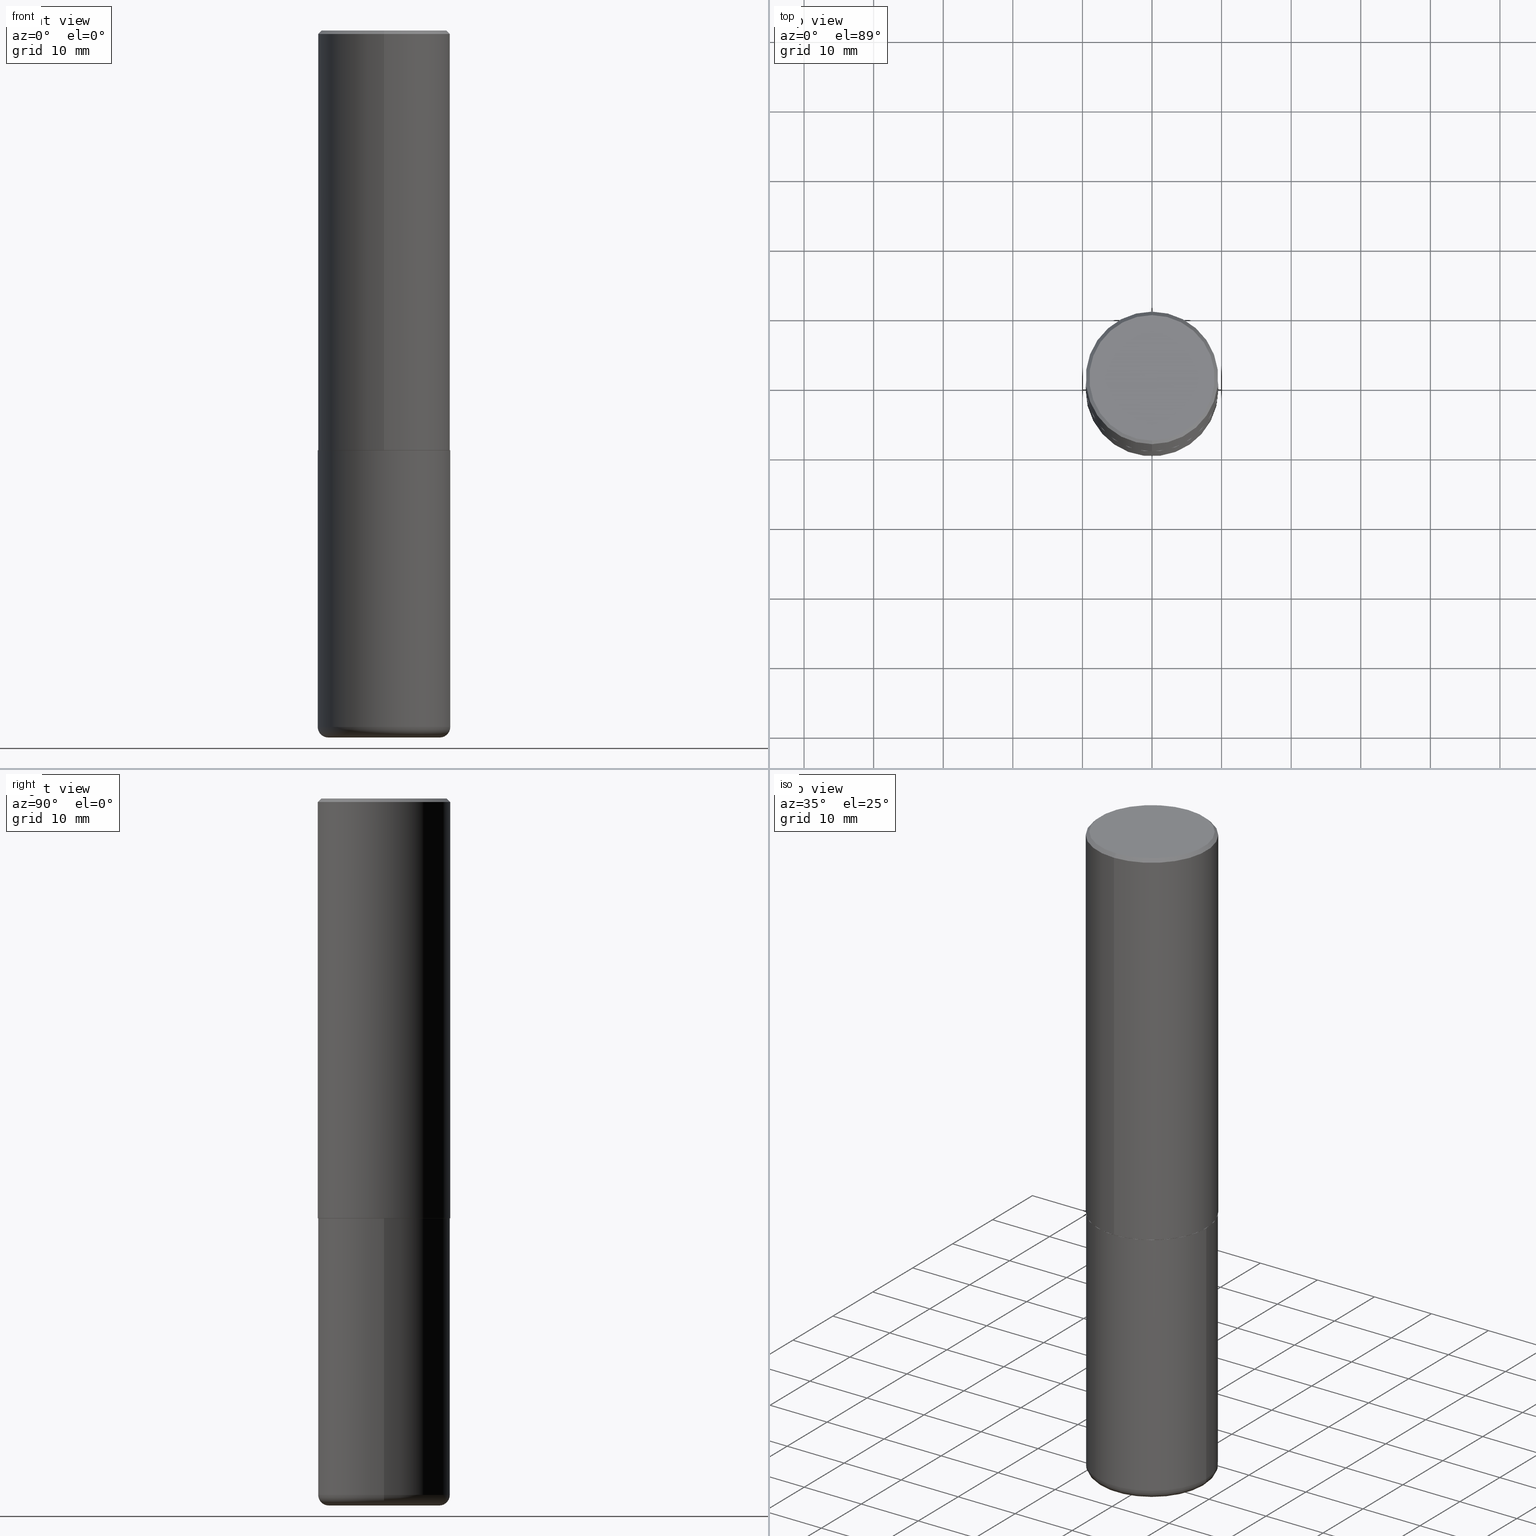
[diagram: canonical four-view strip — front | top / right | iso, engineering-drawing reading convention]
A machine part, canonical four-view strip (front | top / right | iso — engineering-drawing reading convention). The complete STEP part file that produces these views, byte-faithful:
ISO-10303-21;
HEADER;
FILE_DESCRIPTION (( 'STEP AP203' ),
    '1' );
FILE_NAME ('37224.STEP',
    '2024-03-01T22:15:55',
    ( '' ),
    ( '' ),
    'SwSTEP 2.0',
    'SolidWorks 2023',
    '' );
FILE_SCHEMA (( 'CONFIG_CONTROL_DESIGN' ));
ENDSEC;

DATA;
#1 = VECTOR ( 'NONE', #229, 39.37007874015748854 ) ;
#2 = APPROVAL ( #323, 'UNSPECIFIED' ) ;
#3 = ORIENTED_EDGE ( 'NONE', *, *, #187, .F. ) ;
#4 = CARTESIAN_POINT ( 'NONE',  ( -2.618611004132351200E-15, -0.3750000000000001665, 1.309785868171475725E-15 ) ) ;
#5 = LINE ( 'NONE', #204, #127 ) ;
#6 = DATE_AND_TIME ( #374, #208 ) ;
#7 = CC_DESIGN_APPROVAL ( #2, ( #25 ) ) ;
#8 = CARTESIAN_POINT ( 'NONE',  ( 4.889148610458350090E-31, -6.985524630247905373E-17, -0.02000000000000010797 ) ) ;
#9 = FACE_OUTER_BOUND ( 'NONE', #129, .T. ) ;
#10 = CARTESIAN_POINT ( 'NONE',  ( 0.000000000000000000, 0.000000000000000000, 0.000000000000000000 ) ) ;
#11 = CARTESIAN_POINT ( 'NONE',  ( 0.3750000000000000555, -1.091087918388482013E-14, -2.375000000000000000 ) ) ;
#12 = DIRECTION ( 'NONE',  ( 2.438088387897960049E-29, -3.491481338843145188E-15, -1.000000000000000000 ) ) ;
#13 = VECTOR ( 'NONE', #239, 39.37007874015748143 ) ;
#14 = CARTESIAN_POINT ( 'NONE',  ( 5.807988414689699417E-29, -8.292268179752470118E-15, -2.375000000000000000 ) ) ;
#15 = EDGE_CURVE ( 'NONE', #268, #417, #386, .T. ) ;
#16 = TOROIDAL_SURFACE ( 'NONE', #249, 0.3150000000000000577, 0.06000000000000021289 ) ;
#17 = COORDINATED_UNIVERSAL_TIME_OFFSET ( 5, 0, .BEHIND. ) ;
#18 = FACE_OUTER_BOUND ( 'NONE', #387, .T. ) ;
#19 = ORIENTED_EDGE ( 'NONE', *, *, #141, .T. ) ;
#20 = FACE_OUTER_BOUND ( 'NONE', #258, .T. ) ;
#21 = CARTESIAN_POINT ( 'NONE',  ( 9.635147096369438236E-29, -1.375643647504199401E-14, -3.939999999999999947 ) ) ;
#22 = EDGE_CURVE ( 'NONE', #193, #98, #214, .T. ) ;
#23 = AXIS2_PLACEMENT_3D ( 'NONE', #125, #155, #284 ) ;
#24 = DIRECTION ( 'NONE',  ( 1.000000000000000000, -6.982962677686266711E-15, 0.000000000000000000 ) ) ;
#25 = SECURITY_CLASSIFICATION ( '', '', #308 ) ;
#26 = VERTEX_POINT ( 'NONE', #252 ) ;
#27 = UNCERTAINTY_MEASURE_WITH_UNIT (LENGTH_MEASURE( 1.000000000000000082E-05 ), #151, 'distance_accuracy_value', 'NONE');
#28 = EDGE_CURVE ( 'NONE', #183, #114, #292, .T. ) ;
#29 = ORIENTED_EDGE ( 'NONE', *, *, #263, .T. ) ;
#30 = CIRCLE ( 'NONE', #319, 0.3750000000000000555 ) ;
#31 = AXIS2_PLACEMENT_3D ( 'NONE', #403, #271, #24 ) ;
#32 = DATE_AND_TIME ( #186, #400 ) ;
#33 = ADVANCED_BREP_SHAPE_REPRESENTATION ( '37224', ( #228, #371, #59 ), #367 ) ;
#34 = ORIENTED_EDGE ( 'NONE', *, *, #207, .T. ) ;
#35 = EDGE_CURVE ( 'NONE', #177, #54, #168, .T. ) ;
#36 = VERTEX_POINT ( 'NONE', #321 ) ;
#37 = DATE_AND_TIME ( #277, #134 ) ;
#38 = SHAPE_DEFINITION_REPRESENTATION ( #70, #33 ) ;
#39 = EDGE_CURVE ( 'NONE', #98, #193, #256, .T. ) ;
#40 = ORIENTED_EDGE ( 'NONE', *, *, #383, .T. ) ;
#41 = CARTESIAN_POINT ( 'NONE',  ( 4.889148610458350090E-31, -6.985524630247905373E-17, -0.02000000000000010797 ) ) ;
#42 = CARTESIAN_POINT ( 'NONE',  ( -0.3750000000000000555, 2.664535259100376091E-15, -1.844600658845589598E-29 ) ) ;
#43 = CARTESIAN_POINT ( 'NONE',  ( 0.000000000000000000, 0.000000000000000000, 0.000000000000000000 ) ) ;
#44 = CARTESIAN_POINT ( 'NONE',  ( 2.618611004132350411E-15, 0.3749999999999999445, -0.02000000000000141595 ) ) ;
#45 = DIRECTION ( 'NONE',  ( -2.444574305229161733E-29, 3.492762315123933951E-15, 1.000000000000000000 ) ) ;
#46 =( LENGTH_UNIT ( ) NAMED_UNIT ( * ) SI_UNIT ( $, .METRE. ) );
#47 = AXIS2_PLACEMENT_3D ( 'NONE', #163, #79, #170 ) ;
#48 = AXIS2_PLACEMENT_3D ( 'NONE', #235, #209, #407 ) ;
#49 = DIRECTION ( 'NONE',  ( 7.105427357601001859E-15, 1.000000000000000000, -3.491481338843145583E-15 ) ) ;
#50 = LINE ( 'NONE', #4, #13 ) ;
#51 = APPROVAL ( #142, 'UNSPECIFIED' ) ;
#52 = APPROVAL_ROLE ( '' ) ;
#53 = DIRECTION ( 'NONE',  ( -2.445468806185136597E-29, 3.491481338843145583E-15, 1.000000000000000000 ) ) ;
#54 = VERTEX_POINT ( 'NONE', #265 ) ;
#55 = CYLINDRICAL_SURFACE ( 'NONE', #119, 0.3750000000000000555 ) ;
#56 = DIRECTION ( 'NONE',  ( 1.000000000000000000, -6.982962677686266711E-15, 0.000000000000000000 ) ) ;
#57 = ORIENTED_EDGE ( 'NONE', *, *, #289, .F. ) ;
#58 = CARTESIAN_POINT ( 'NONE',  ( 5.805863974919259746E-29, -8.295310498419343824E-15, -2.375000000000000000 ) ) ;
#59 = AXIS2_PLACEMENT_3D ( 'NONE', #320, #273, #189 ) ;
#60 = ORIENTED_EDGE ( 'NONE', *, *, #141, .F. ) ;
#61 = CARTESIAN_POINT ( 'NONE',  ( -2.611628041454605626E-15, -0.3740000000000082703, -2.374999999999998668 ) ) ;
#62 = COORDINATED_UNIVERSAL_TIME_OFFSET ( 5, 0, .BEHIND. ) ;
#63 = ORIENTED_EDGE ( 'NONE', *, *, #22, .F. ) ;
#64 = DIRECTION ( 'NONE',  ( -2.445468806185136597E-29, 3.491481338843145583E-15, 1.000000000000000000 ) ) ;
#65 = CIRCLE ( 'NONE', #109, 0.06000000000000017819 ) ;
#66 = CARTESIAN_POINT ( 'NONE',  ( 9.781875224740547508E-29, -1.396592535537258391E-14, -4.000000000000000888 ) ) ;
#67 = ORIENTED_EDGE ( 'NONE', *, *, #379, .T. ) ;
#68 = ORIENTED_EDGE ( 'NONE', *, *, #210, .F. ) ;
#69 = DIRECTION ( 'NONE',  ( 1.000000000000000000, -6.982962677686263555E-15, 4.883557194083111219E-29 ) ) ;
#70 = PRODUCT_DEFINITION_SHAPE ( 'NONE', 'NONE',  #230 ) ;
#71 = AXIS2_PLACEMENT_3D ( 'NONE', #21, #53, #169 ) ;
#72 = LINE ( 'NONE', #42, #306 ) ;
#73 = DIRECTION ( 'NONE',  ( -2.444574305229161733E-29, 3.492762315123933951E-15, 1.000000000000000000 ) ) ;
#74 = EDGE_CURVE ( 'NONE', #98, #221, #300, .T. ) ;
#75 = CARTESIAN_POINT ( 'NONE',  ( -2.572686749164323547E-15, -0.3750000000000001110, -0.01999999999999879652 ) ) ;
#76 = FACE_OUTER_BOUND ( 'NONE', #160, .T. ) ;
#77 = CONICAL_SURFACE ( 'NONE', #113, 0.3739999999999999991, 0.7853981633974141952 ) ;
#78 = CARTESIAN_POINT ( 'NONE',  ( 4.937077108964125641E-29, -2.090395200594849049E-14, -4.000000000000000000 ) ) ;
#79 = DIRECTION ( 'NONE',  ( -2.445468806185136597E-29, 3.491481338843145583E-15, 1.000000000000000000 ) ) ;
#80 = AXIS2_PLACEMENT_3D ( 'NONE', #165, #99, #167 ) ;
#81 = ADVANCED_FACE ( 'NONE', ( #76 ), #260, .T. ) ;
#82 = PRODUCT_DEFINITION_FORMATION_WITH_SPECIFIED_SOURCE ( 'ANY', '', #293, .NOT_KNOWN. ) ;
#83 = DIRECTION ( 'NONE',  ( -1.000000000000000000, 6.982962677686265922E-15, -4.876176775795935793E-29 ) ) ;
#84 = FACE_OUTER_BOUND ( 'NONE', #287, .T. ) ;
#85 = PLANE ( 'NONE',  #154 ) ;
#86 = ORIENTED_EDGE ( 'NONE', *, *, #304, .T. ) ;
#87 = DIRECTION ( 'NONE',  ( -1.000000000000000000, 6.982962677686265922E-15, -4.876176775795935793E-29 ) ) ;
#88 = APPLICATION_PROTOCOL_DEFINITION ( 'international standard', 'config_control_design', 1994, #232 ) ;
#89 = PLANE ( 'NONE',  #227 ) ;
#90 = AXIS2_PLACEMENT_3D ( 'NONE', #8, #104, #305 ) ;
#91 = AXIS2_PLACEMENT_3D ( 'NONE', #111, #73, #242 ) ;
#92 = LINE ( 'NONE', #61, #326 ) ;
#93 = EDGE_LOOP ( 'NONE', ( #118, #143, #389, #370 ) ) ;
#94 = CARTESIAN_POINT ( 'NONE',  ( 5.803419400614030161E-29, -8.291817736104219412E-15, -2.373999999999999666 ) ) ;
#95 = DESIGN_CONTEXT ( 'detailed design', #247, 'design' ) ;
#96 = DIRECTION ( 'NONE',  ( -2.444574305229161733E-29, 3.492762315123933951E-15, 1.000000000000000000 ) ) ;
#97 = ORIENTED_EDGE ( 'NONE', *, *, #201, .T. ) ;
#98 = VERTEX_POINT ( 'NONE', #236 ) ;
#99 = DIRECTION ( 'NONE',  ( -2.445468806185136597E-29, 3.491481338843145583E-15, 1.000000000000000000 ) ) ;
#100 = CARTESIAN_POINT ( 'NONE',  ( 5.807988414689699417E-29, -8.292268179752470118E-15, -2.375000000000000000 ) ) ;
#101 = PLANE ( 'NONE',  #272 ) ;
#102 = EDGE_CURVE ( 'NONE', #220, #346, #181, .T. ) ;
#103 = ORGANIZATION ( 'UNSPECIFIED', 'UNSPECIFIED', '' ) ;
#104 = DIRECTION ( 'NONE',  ( -2.444574305229161733E-29, 3.492762315123933951E-15, 1.000000000000000000 ) ) ;
#105 = APPROVAL_ROLE ( '' ) ;
#106 = FACE_OUTER_BOUND ( 'NONE', #257, .T. ) ;
#107 = CARTESIAN_POINT ( 'NONE',  ( -2.618611004132293613E-15, -0.3750000000000085487, -2.373999999999998334 ) ) ;
#108 = PRODUCT_RELATED_PRODUCT_CATEGORY ( 'detail', '', ( #293 ) ) ;
#109 = AXIS2_PLACEMENT_3D ( 'NONE', #211, #333, #402 ) ;
#110 = DIRECTION ( 'NONE',  ( 6.982962677686265922E-15, 1.000000000000000000, -3.494488891895536035E-15 ) ) ;
#111 = CARTESIAN_POINT ( 'NONE',  ( 5.805863974919259746E-29, -8.295310498419343824E-15, -2.375000000000000000 ) ) ;
#112 = ORIENTED_EDGE ( 'NONE', *, *, #341, .T. ) ;
#113 = AXIS2_PLACEMENT_3D ( 'NONE', #296, #394, #171 ) ;
#114 = VERTEX_POINT ( 'NONE', #398 ) ;
#115 =( NAMED_UNIT ( * ) SI_UNIT ( $, .STERADIAN. ) SOLID_ANGLE_UNIT ( ) );
#116 = ADVANCED_FACE ( 'NONE', ( #206 ), #267, .T. ) ;
#117 = CIRCLE ( 'NONE', #392, 0.3750000000000002776 ) ;
#118 = ORIENTED_EDGE ( 'NONE', *, *, #22, .T. ) ;
#119 = AXIS2_PLACEMENT_3D ( 'NONE', #43, #178, #330 ) ;
#120 = MECHANICAL_CONTEXT ( 'NONE', #232, 'mechanical' ) ;
#121 = DIRECTION ( 'NONE',  ( 1.000000000000000000, -6.982962677686267499E-15, 0.000000000000000000 ) ) ;
#122 = PERSON_AND_ORGANIZATION_ROLE ( 'design_owner' ) ;
#123 = CC_DESIGN_DATE_AND_TIME_ASSIGNMENT ( #285, #347, ( #25 ) ) ;
#124 = EDGE_LOOP ( 'NONE', ( #3, #40, #357, #348 ) ) ;
#125 = CARTESIAN_POINT ( 'NONE',  ( 5.805863974919259746E-29, -8.295310498419343824E-15, -2.375000000000000000 ) ) ;
#126 = LINE ( 'NONE', #388, #1 ) ;
#127 = VECTOR ( 'NONE', #336, 39.37007874015748143 ) ;
#128 = AXIS2_PLACEMENT_3D ( 'NONE', #100, #176, #56 ) ;
#129 = EDGE_LOOP ( 'NONE', ( #344, #159, #250, #60 ) ) ;
#130 = CARTESIAN_POINT ( 'NONE',  ( 5.803419400614030161E-29, -8.291817736104219412E-15, -2.373999999999999666 ) ) ;
#131 = CARTESIAN_POINT ( 'NONE',  ( 0.000000000000000000, 0.000000000000000000, 0.000000000000000000 ) ) ;
#132 = AXIS2_PLACEMENT_3D ( 'NONE', #198, #329, #200 ) ;
#133 = APPROVAL_DATE_TIME ( #37, #180 ) ;
#134 = LOCAL_TIME ( 17, 15, 55.00000000000000000, #234 ) ;
#135 = PERSON_AND_ORGANIZATION ( #213, #103 ) ;
#136 = CARTESIAN_POINT ( 'NONE',  ( -2.611628041454605626E-15, -0.3740000000000082703, -2.374999999999998668 ) ) ;
#137 = CC_DESIGN_PERSON_AND_ORGANIZATION_ASSIGNMENT ( #337, #172, ( #230 ) ) ;
#138 = DIRECTION ( 'NONE',  ( -2.445468806185136597E-29, 3.491481338843145583E-15, 1.000000000000000000 ) ) ;
#139 = FACE_OUTER_BOUND ( 'NONE', #93, .T. ) ;
#140 = VECTOR ( 'NONE', #233, 39.37007874015748143 ) ;
#141 = EDGE_CURVE ( 'NONE', #183, #220, #50, .T. ) ;
#142 = APPROVAL_STATUS ( 'not_yet_approved' ) ;
#143 = ORIENTED_EDGE ( 'NONE', *, *, #74, .T. ) ;
#144 = ADVANCED_FACE ( 'NONE', ( #139 ), #237, .T. ) ;
#145 = CARTESIAN_POINT ( 'NONE',  ( 2.660982545421634357E-15, 0.3739999999999917835, -2.375000000000001776 ) ) ;
#146 = CLOSED_SHELL ( 'NONE', ( #270, #217, #240, #116, #278, #175, #405, #362 ) ) ;
#147 = AXIS2_PLACEMENT_3D ( 'NONE', #222, #364, #356 ) ;
#148 = CARTESIAN_POINT ( 'NONE',  ( -2.504081769186607821E-15, -0.3549999999999997602, 1.509301655325001413E-15 ) ) ;
#149 = EDGE_LOOP ( 'NONE', ( #57, #317, #29, #34 ) ) ;
#150 = DIRECTION ( 'NONE',  ( -6.982962677686266711E-15, -1.000000000000000000, 3.652203200085913145E-15 ) ) ;
#151 =( CONVERSION_BASED_UNIT ( 'INCH', #414 ) LENGTH_UNIT ( ) NAMED_UNIT ( #373 ) );
#152 = ORIENTED_EDGE ( 'NONE', *, *, #102, .T. ) ;
#153 = DIRECTION ( 'NONE',  ( -4.937700262164378437E-15, -0.7071067811865208164, 0.7071067811865739960 ) ) ;
#154 = AXIS2_PLACEMENT_3D ( 'NONE', #339, #311, #361 ) ;
#155 = DIRECTION ( 'NONE',  ( -2.444574305229161733E-29, 3.492762315123933951E-15, 1.000000000000000000 ) ) ;
#156 = CC_DESIGN_PERSON_AND_ORGANIZATION_ASSIGNMENT ( #382, #353, ( #25 ) ) ;
#157 = ORIENTED_EDGE ( 'NONE', *, *, #35, .T. ) ;
#158 = APPROVAL_ROLE ( '' ) ;
#159 = ORIENTED_EDGE ( 'NONE', *, *, #297, .T. ) ;
#160 = EDGE_LOOP ( 'NONE', ( #67, #223, #324, #68 ) ) ;
#161 = LOCAL_TIME ( 17, 15, 55.00000000000000000, #17 ) ;
#162 = CC_DESIGN_DATE_AND_TIME_ASSIGNMENT ( #6, #299, ( #230 ) ) ;
#163 = CARTESIAN_POINT ( 'NONE',  ( 9.635147096369438236E-29, -1.375643647504199401E-14, -3.939999999999999947 ) ) ;
#164 = DIRECTION ( 'NONE',  ( -2.444574305229161733E-29, 3.492762315123933951E-15, 1.000000000000000000 ) ) ;
#165 = CARTESIAN_POINT ( 'NONE',  ( 0.000000000000000000, 0.000000000000000000, 0.000000000000000000 ) ) ;
#166 = PERSON_AND_ORGANIZATION ( #213, #103 ) ;
#167 = DIRECTION ( 'NONE',  ( 1.000000000000000000, -6.982962677686265922E-15, 4.876176775795935793E-29 ) ) ;
#168 = CIRCLE ( 'NONE', #248, 0.3750000000000000555 ) ;
#169 = DIRECTION ( 'NONE',  ( 1.000000000000000000, -6.982962677686266711E-15, 0.000000000000000000 ) ) ;
#170 = DIRECTION ( 'NONE',  ( 1.000000000000000000, -6.982962677686263555E-15, 4.883557194083111219E-29 ) ) ;
#171 = DIRECTION ( 'NONE',  ( -6.982962677686266711E-15, -1.000000000000000000, 3.652203200085913145E-15 ) ) ;
#172 = PERSON_AND_ORGANIZATION_ROLE ( 'creator' ) ;
#173 = FACE_OUTER_BOUND ( 'NONE', #179, .T. ) ;
#174 = CLOSED_SHELL ( 'NONE', ( #81, #144, #275, #416, #345, #328 ) ) ;
#175 = ADVANCED_FACE ( 'NONE', ( #331 ), #77, .T. ) ;
#176 = DIRECTION ( 'NONE',  ( -2.445468806185136597E-29, 3.491481338843145583E-15, 1.000000000000000000 ) ) ;
#177 = VERTEX_POINT ( 'NONE', #11 ) ;
#178 = DIRECTION ( 'NONE',  ( -2.445468806185136597E-29, 3.491481338843145583E-15, 1.000000000000000000 ) ) ;
#179 = EDGE_LOOP ( 'NONE', ( #157, #195 ) ) ;
#180 = APPROVAL ( #396, 'UNSPECIFIED' ) ;
#181 = CIRCLE ( 'NONE', #90, 0.3750000000000000555 ) ;
#182 = CIRCLE ( 'NONE', #128, 0.3750000000000000555 ) ;
#183 = VERTEX_POINT ( 'NONE', #107 ) ;
#184 = FACE_OUTER_BOUND ( 'NONE', #312, .T. ) ;
#185 = DIRECTION ( 'NONE',  ( -2.444574305229161733E-29, 3.492762315123933951E-15, 1.000000000000000000 ) ) ;
#186 = CALENDAR_DATE ( 2024, 1, 3 ) ;
#187 = EDGE_CURVE ( 'NONE', #221, #54, #72, .T. ) ;
#188 = ORIENTED_EDGE ( 'NONE', *, *, #358, .T. ) ;
#189 = DIRECTION ( 'NONE',  ( 1.000000000000000000, 0.000000000000000000, 0.000000000000000000 ) ) ;
#190 = APPROVAL_PERSON_ORGANIZATION ( #192, #2, #158 ) ;
#191 = DIRECTION ( 'NONE',  ( 1.000000000000000000, -6.982962677686266711E-15, 0.000000000000000000 ) ) ;
#192 = PERSON_AND_ORGANIZATION ( #213, #103 ) ;
#193 = VERTEX_POINT ( 'NONE', #231 ) ;
#194 = ORIENTED_EDGE ( 'NONE', *, *, #263, .F. ) ;
#195 = ORIENTED_EDGE ( 'NONE', *, *, #401, .T. ) ;
#196 = AXIS2_PLACEMENT_3D ( 'NONE', #66, #138, #365 ) ;
#197 = CIRCLE ( 'NONE', #71, 0.3750000000000000555 ) ;
#198 = CARTESIAN_POINT ( 'NONE',  ( 4.889148610458350090E-31, -6.985524630247905373E-17, -0.02000000000000010797 ) ) ;
#199 = FACE_OUTER_BOUND ( 'NONE', #124, .T. ) ;
#200 = DIRECTION ( 'NONE',  ( 6.982962677686265922E-15, 1.000000000000000000, -3.494488891895536035E-15 ) ) ;
#201 = EDGE_CURVE ( 'NONE', #114, #183, #117, .T. ) ;
#202 = DIRECTION ( 'NONE',  ( -2.444574305229161733E-29, 3.492762315123933951E-15, 1.000000000000000000 ) ) ;
#203 = AXIS2_PLACEMENT_3D ( 'NONE', #58, #185, #150 ) ;
#204 = CARTESIAN_POINT ( 'NONE',  ( 0.3750000000000000555, -2.618611004132350016E-15, 1.828566290923476203E-29 ) ) ;
#205 = APPROVAL_DATE_TIME ( #310, #51 ) ;
#206 = FACE_OUTER_BOUND ( 'NONE', #149, .T. ) ;
#207 = EDGE_CURVE ( 'NONE', #346, #220, #30, .T. ) ;
#208 = LOCAL_TIME ( 17, 15, 55.00000000000000000, #376 ) ;
#209 = DIRECTION ( 'NONE',  ( -2.444574305229161733E-29, 3.492762315123933951E-15, 1.000000000000000000 ) ) ;
#210 = EDGE_CURVE ( 'NONE', #26, #177, #5, .T. ) ;
#211 = CARTESIAN_POINT ( 'NONE',  ( 0.3150000000000000577, -1.595606971851316740E-14, -3.939999999999999947 ) ) ;
#212 = ORIENTED_EDGE ( 'NONE', *, *, #332, .T. ) ;
#213 = PERSON ( 'UNSPECIFIED', 'UNSPECIFIED', 'UNSPECIFIED', ('UNSPECIFIED'), ('UNSPECIFIED'), ('UNSPECIFIED') ) ;
#214 = CIRCLE ( 'NONE', #244, 0.3150000000000000577 ) ;
#215 = LINE ( 'NONE', #316, #351 ) ;
#216 = COORDINATED_UNIVERSAL_TIME_OFFSET ( 5, 0, .BEHIND. ) ;
#217 = ADVANCED_FACE ( 'NONE', ( #9 ), #399, .T. ) ;
#218 = EDGE_LOOP ( 'NONE', ( #63, #307 ) ) ;
#219 = DIRECTION ( 'NONE',  ( -6.982962677686266711E-15, -1.000000000000000000, 3.642463991552348591E-15 ) ) ;
#220 = VERTEX_POINT ( 'NONE', #75 ) ;
#221 = VERTEX_POINT ( 'NONE', #264 ) ;
#222 = CARTESIAN_POINT ( 'NONE',  ( -6.584975069595768119E-45, 9.408489944411256093E-31, 2.693710334560058270E-16 ) ) ;
#223 = ORIENTED_EDGE ( 'NONE', *, *, #187, .T. ) ;
#224 = AXIS2_PLACEMENT_3D ( 'NONE', #94, #96, #219 ) ;
#225 = DIRECTION ( 'NONE',  ( -6.982962677686266711E-15, -1.000000000000000000, 3.492762315123933556E-15 ) ) ;
#226 = CONICAL_SURFACE ( 'NONE', #132, 0.3750000000000000555, 0.7853981633974456145 ) ;
#227 = AXIS2_PLACEMENT_3D ( 'NONE', #14, #375, #83 ) ;
#228 = MANIFOLD_SOLID_BREP ( 'Body-Move/Copy2[1]', #174 ) ;
#229 = DIRECTION ( 'NONE',  ( 5.024295867787889629E-15, 0.7071067811865257013, 0.7071067811865691111 ) ) ;
#230 = PRODUCT_DEFINITION ( 'UNKNOWN', '', #82, #95 ) ;
#231 = CARTESIAN_POINT ( 'NONE',  ( 0.3150000000000000577, -1.616555859884375729E-14, -4.000000000000000888 ) ) ;
#232 = APPLICATION_CONTEXT ( 'configuration controlled 3d designs of mechanical parts and assemblies' ) ;
#233 = DIRECTION ( 'NONE',  ( -2.444574305229161733E-29, 3.492762315123933951E-15, 1.000000000000000000 ) ) ;
#234 = COORDINATED_UNIVERSAL_TIME_OFFSET ( 5, 0, .BEHIND. ) ;
#235 = CARTESIAN_POINT ( 'NONE',  ( 5.805863974919259746E-29, -8.295310498419343824E-15, -2.375000000000000000 ) ) ;
#236 = CARTESIAN_POINT ( 'NONE',  ( -0.3150000000000000577, -1.140980847683494193E-14, -4.000000000000000888 ) ) ;
#237 = TOROIDAL_SURFACE ( 'NONE', #47, 0.3150000000000000577, 0.06000000000000021289 ) ;
#238 = APPROVAL_PERSON_ORGANIZATION ( #135, #180, #105 ) ;
#239 = DIRECTION ( 'NONE',  ( -2.444574305229161733E-29, 3.492762315123933951E-15, 1.000000000000000000 ) ) ;
#240 = ADVANCED_FACE ( 'NONE', ( #334 ), #226, .T. ) ;
#241 = CALENDAR_DATE ( 2024, 1, 3 ) ;
#242 = DIRECTION ( 'NONE',  ( -6.982962677686265922E-15, -1.000000000000000000, 3.492762315123933951E-15 ) ) ;
#243 = EDGE_LOOP ( 'NONE', ( #246, #212, #112, #377 ) ) ;
#244 = AXIS2_PLACEMENT_3D ( 'NONE', #412, #352, #121 ) ;
#245 = CC_DESIGN_SECURITY_CLASSIFICATION ( #25, ( #82 ) ) ;
#246 = ORIENTED_EDGE ( 'NONE', *, *, #355, .F. ) ;
#247 = APPLICATION_CONTEXT ( 'configuration controlled 3d designs of mechanical parts and assemblies' ) ;
#248 = AXIS2_PLACEMENT_3D ( 'NONE', #350, #64, #191 ) ;
#249 = AXIS2_PLACEMENT_3D ( 'NONE', #409, #288, #69 ) ;
#250 = ORIENTED_EDGE ( 'NONE', *, *, #102, .F. ) ;
#251 = APPLICATION_PROTOCOL_DEFINITION ( 'international standard', 'config_control_design', 1994, #247 ) ;
#252 = CARTESIAN_POINT ( 'NONE',  ( 0.3750000000000001110, -1.637504747917434403E-14, -3.939999999999999947 ) ) ;
#253 = PERSON_AND_ORGANIZATION_ROLE ( 'creator' ) ;
#254 = ORIENTED_EDGE ( 'NONE', *, *, #332, .F. ) ;
#255 = CARTESIAN_POINT ( 'NONE',  ( -6.584975069595768119E-45, 9.408489944411256093E-31, 2.693710334560058270E-16 ) ) ;
#256 = CIRCLE ( 'NONE', #196, 0.3150000000000000577 ) ;
#257 = EDGE_LOOP ( 'NONE', ( #404, #295, #385, #408 ) ) ;
#258 = EDGE_LOOP ( 'NONE', ( #415, #97, #19, #274 ) ) ;
#259 = DIRECTION ( 'NONE',  ( -6.982962677686265922E-15, -1.000000000000000000, 3.494488891895536035E-15 ) ) ;
#260 = CYLINDRICAL_SURFACE ( 'NONE', #80, 0.3750000000000000555 ) ;
#261 = CONICAL_SURFACE ( 'NONE', #48, 0.3739999999999999991, 0.7853981633974141952 ) ;
#262 = LINE ( 'NONE', #395, #140 ) ;
#263 = EDGE_CURVE ( 'NONE', #36, #346, #298, .T. ) ;
#264 = CARTESIAN_POINT ( 'NONE',  ( -0.3750000000000001110, -1.109190121594161832E-14, -3.939999999999999947 ) ) ;
#265 = CARTESIAN_POINT ( 'NONE',  ( -0.3750000000000000555, -8.359817068296857158E-15, -2.375000000000000000 ) ) ;
#266 = DIRECTION ( 'NONE',  ( -2.444574305229161733E-29, 3.492762315123933951E-15, 1.000000000000000000 ) ) ;
#267 = CONICAL_SURFACE ( 'NONE', #325, 0.3750000000000000555, 0.7853981633974456145 ) ;
#268 = VERTEX_POINT ( 'NONE', #136 ) ;
#269 = EDGE_LOOP ( 'NONE', ( #322, #290, #152, #194 ) ) ;
#270 = ADVANCED_FACE ( 'NONE', ( #106 ), #261, .T. ) ;
#271 = DIRECTION ( 'NONE',  ( -2.445468806185136597E-29, 3.491481338843145583E-15, 1.000000000000000000 ) ) ;
#272 = AXIS2_PLACEMENT_3D ( 'NONE', #78, #12, #87 ) ;
#273 = DIRECTION ( 'NONE',  ( 0.000000000000000000, 0.000000000000000000, 1.000000000000000000 ) ) ;
#274 = ORIENTED_EDGE ( 'NONE', *, *, #207, .F. ) ;
#275 = ADVANCED_FACE ( 'NONE', ( #173 ), #89, .F. ) ;
#276 = DIRECTION ( 'NONE',  ( -6.982962677686266711E-15, -1.000000000000000000, 3.492762315123933556E-15 ) ) ;
#277 = CALENDAR_DATE ( 2024, 1, 3 ) ;
#278 = ADVANCED_FACE ( 'NONE', ( #20 ), #343, .T. ) ;
#279 = ORIENTED_EDGE ( 'NONE', *, *, #39, .T. ) ;
#280 = CARTESIAN_POINT ( 'NONE',  ( 2.618611004132350411E-15, 0.3749999999999999445, -0.02000000000000141595 ) ) ;
#281 = CIRCLE ( 'NONE', #31, 0.3750000000000000555 ) ;
#282 = CIRCLE ( 'NONE', #147, 0.3549999999999997602 ) ;
#283 =( NAMED_UNIT ( * ) PLANE_ANGLE_UNIT ( ) SI_UNIT ( $, .RADIAN. ) );
#284 = DIRECTION ( 'NONE',  ( -6.982962677686266711E-15, -1.000000000000000000, 3.652203200085913145E-15 ) ) ;
#285 = DATE_AND_TIME ( #318, #294 ) ;
#286 = PERSON_AND_ORGANIZATION ( #213, #103 ) ;
#287 = EDGE_LOOP ( 'NONE', ( #384, #254 ) ) ;
#288 = DIRECTION ( 'NONE',  ( -2.445468806185136597E-29, 3.491481338843145583E-15, 1.000000000000000000 ) ) ;
#289 = EDGE_CURVE ( 'NONE', #381, #220, #215, .T. ) ;
#290 = ORIENTED_EDGE ( 'NONE', *, *, #289, .T. ) ;
#291 = DIRECTION ( 'NONE',  ( -4.851104656540950075E-15, -0.7071067811865479058, -0.7071067811865469066 ) ) ;
#292 = CIRCLE ( 'NONE', #224, 0.3750000000000002776 ) ;
#293 = PRODUCT ( '37224', '37224', '', ( #120 ) ) ;
#294 = LOCAL_TIME ( 17, 15, 55.00000000000000000, #216 ) ;
#295 = ORIENTED_EDGE ( 'NONE', *, *, #355, .T. ) ;
#296 = CARTESIAN_POINT ( 'NONE',  ( 5.805863974919259746E-29, -8.295310498419343824E-15, -2.375000000000000000 ) ) ;
#297 = EDGE_CURVE ( 'NONE', #114, #346, #262, .T. ) ;
#298 = LINE ( 'NONE', #44, #410 ) ;
#299 = DATE_TIME_ROLE ( 'creation_date' ) ;
#300 = CIRCLE ( 'NONE', #338, 0.06000000000000017819 ) ;
#301 = DIRECTION ( 'NONE',  ( 4.937700262164533054E-15, 0.7071067811865430208, -0.7071067811865517916 ) ) ;
#302 = PERSON_AND_ORGANIZATION ( #213, #103 ) ;
#303 = CARTESIAN_POINT ( 'NONE',  ( 4.889148610458350090E-31, -6.985524630247905373E-17, -0.02000000000000010797 ) ) ;
#304 = EDGE_CURVE ( 'NONE', #36, #381, #282, .T. ) ;
#305 = DIRECTION ( 'NONE',  ( -6.982962677686265922E-15, -1.000000000000000000, 3.494488891895536035E-15 ) ) ;
#306 = VECTOR ( 'NONE', #366, 39.37007874015748143 ) ;
#307 = ORIENTED_EDGE ( 'NONE', *, *, #39, .F. ) ;
#308 = SECURITY_CLASSIFICATION_LEVEL ( 'unclassified' ) ;
#309 = PERSON_AND_ORGANIZATION ( #213, #103 ) ;
#310 = DATE_AND_TIME ( #241, #161 ) ;
#311 = DIRECTION ( 'NONE',  ( 2.444574305229161733E-29, -3.492762315123933951E-15, -1.000000000000000000 ) ) ;
#312 = EDGE_LOOP ( 'NONE', ( #354, #279, #188, #406 ) ) ;
#313 = CIRCLE ( 'NONE', #411, 0.3549999999999997602 ) ;
#314 = CC_DESIGN_PERSON_AND_ORGANIZATION_ASSIGNMENT ( #286, #122, ( #293 ) ) ;
#315 = APPROVAL_DATE_TIME ( #32, #2 ) ;
#316 = CARTESIAN_POINT ( 'NONE',  ( -2.572686749164323547E-15, -0.3750000000000001110, -0.01999999999999879652 ) ) ;
#317 = ORIENTED_EDGE ( 'NONE', *, *, #304, .F. ) ;
#318 = CALENDAR_DATE ( 2024, 1, 3 ) ;
#319 = AXIS2_PLACEMENT_3D ( 'NONE', #303, #266, #259 ) ;
#320 = CARTESIAN_POINT ( 'NONE',  ( 0.000000000000000000, 0.000000000000000000, 0.000000000000000000 ) ) ;
#321 = CARTESIAN_POINT ( 'NONE',  ( 2.548781377355486718E-15, 0.3549999999999997602, -9.705595884129897592E-16 ) ) ;
#322 = ORIENTED_EDGE ( 'NONE', *, *, #349, .F. ) ;
#323 = APPROVAL_STATUS ( 'not_yet_approved' ) ;
#324 = ORIENTED_EDGE ( 'NONE', *, *, #35, .F. ) ;
#325 = AXIS2_PLACEMENT_3D ( 'NONE', #41, #397, #110 ) ;
#326 = VECTOR ( 'NONE', #153, 39.37007874015748854 ) ;
#327 = ORIENTED_EDGE ( 'NONE', *, *, #349, .T. ) ;
#328 = ADVANCED_FACE ( 'NONE', ( #391 ), #101, .T. ) ;
#329 = DIRECTION ( 'NONE',  ( 2.444574305229161733E-29, -3.492762315123933951E-15, -1.000000000000000000 ) ) ;
#330 = DIRECTION ( 'NONE',  ( 1.000000000000000000, -6.982962677686265922E-15, 4.876176775795935793E-29 ) ) ;
#331 = FACE_OUTER_BOUND ( 'NONE', #243, .T. ) ;
#332 = EDGE_CURVE ( 'NONE', #417, #268, #380, .T. ) ;
#333 = DIRECTION ( 'NONE',  ( -6.982962677686266711E-15, -1.000000000000000000, 3.491481338843145583E-15 ) ) ;
#334 = FACE_OUTER_BOUND ( 'NONE', #269, .T. ) ;
#335 = APPROVAL_PERSON_ORGANIZATION ( #166, #51, #52 ) ;
#336 = DIRECTION ( 'NONE',  ( -2.445468806185136877E-29, 3.491481338843145188E-15, 1.000000000000000000 ) ) ;
#337 = PERSON_AND_ORGANIZATION ( #213, #103 ) ;
#338 = AXIS2_PLACEMENT_3D ( 'NONE', #360, #49, #390 ) ;
#339 = CARTESIAN_POINT ( 'NONE',  ( 2.478951750578623026E-15, 0.3549999999999997602, -1.105245105140992969E-15 ) ) ;
#340 = CC_DESIGN_APPROVAL ( #51, ( #230 ) ) ;
#341 = EDGE_CURVE ( 'NONE', #268, #183, #92, .T. ) ;
#342 = PLANE ( 'NONE',  #91 ) ;
#343 = CYLINDRICAL_SURFACE ( 'NONE', #393, 0.3750000000000001665 ) ;
#344 = ORIENTED_EDGE ( 'NONE', *, *, #28, .T. ) ;
#345 = ADVANCED_FACE ( 'NONE', ( #184 ), #16, .T. ) ;
#346 = VERTEX_POINT ( 'NONE', #280 ) ;
#347 = DATE_TIME_ROLE ( 'classification_date' ) ;
#348 = ORIENTED_EDGE ( 'NONE', *, *, #401, .F. ) ;
#349 = EDGE_CURVE ( 'NONE', #381, #36, #313, .T. ) ;
#350 = CARTESIAN_POINT ( 'NONE',  ( 5.807988414689699417E-29, -8.292268179752470118E-15, -2.375000000000000000 ) ) ;
#351 = VECTOR ( 'NONE', #291, 39.37007874015748854 ) ;
#352 = DIRECTION ( 'NONE',  ( -2.445468806185136597E-29, 3.491481338843145583E-15, 1.000000000000000000 ) ) ;
#353 = PERSON_AND_ORGANIZATION_ROLE ( 'classification_officer' ) ;
#354 = ORIENTED_EDGE ( 'NONE', *, *, #74, .F. ) ;
#355 = EDGE_CURVE ( 'NONE', #417, #114, #126, .T. ) ;
#356 = DIRECTION ( 'NONE',  ( -6.982962677686266711E-15, -1.000000000000000000, 3.492762315123933556E-15 ) ) ;
#357 = ORIENTED_EDGE ( 'NONE', *, *, #210, .T. ) ;
#358 = EDGE_CURVE ( 'NONE', #193, #26, #65, .T. ) ;
#359 = AXIS2_PLACEMENT_3D ( 'NONE', #131, #368, #225 ) ;
#360 = CARTESIAN_POINT ( 'NONE',  ( -0.3150000000000000577, -1.151822685739767881E-14, -3.939999999999999947 ) ) ;
#361 = DIRECTION ( 'NONE',  ( 6.982962677686265922E-15, 1.000000000000000000, -3.492762315123933951E-15 ) ) ;
#362 = ADVANCED_FACE ( 'NONE', ( #18 ), #85, .F. ) ;
#363 = DIRECTION ( 'NONE',  ( -6.982962677686266711E-15, -1.000000000000000000, 3.642463991552348591E-15 ) ) ;
#364 = DIRECTION ( 'NONE',  ( -2.444574305229161733E-29, 3.492762315123933951E-15, 1.000000000000000000 ) ) ;
#365 = DIRECTION ( 'NONE',  ( 1.000000000000000000, -6.982962677686267499E-15, 0.000000000000000000 ) ) ;
#366 = DIRECTION ( 'NONE',  ( -2.445468806185136877E-29, 3.491481338843145188E-15, 1.000000000000000000 ) ) ;
#367 =( GEOMETRIC_REPRESENTATION_CONTEXT ( 3 ) GLOBAL_UNCERTAINTY_ASSIGNED_CONTEXT ( ( #27 ) ) GLOBAL_UNIT_ASSIGNED_CONTEXT ( ( #151, #283, #115 ) ) REPRESENTATION_CONTEXT ( 'NONE', 'WORKASPACE' ) );
#368 = DIRECTION ( 'NONE',  ( -2.444574305229161733E-29, 3.492762315123933951E-15, 1.000000000000000000 ) ) ;
#369 = PERSON_AND_ORGANIZATION_ROLE ( 'design_supplier' ) ;
#370 = ORIENTED_EDGE ( 'NONE', *, *, #358, .F. ) ;
#371 = MANIFOLD_SOLID_BREP ( 'Body-Move/Copy2[2]', #146 ) ;
#372 = CC_DESIGN_PERSON_AND_ORGANIZATION_ASSIGNMENT ( #302, #253, ( #82 ) ) ;
#373 = DIMENSIONAL_EXPONENTS ( 1.000000000000000000, 0.000000000000000000, 0.000000000000000000, 0.000000000000000000, 0.000000000000000000, 0.000000000000000000, 0.000000000000000000 ) ;
#374 = CALENDAR_DATE ( 2024, 1, 3 ) ;
#375 = DIRECTION ( 'NONE',  ( 2.438088387897960049E-29, -3.491481338843145188E-15, -1.000000000000000000 ) ) ;
#376 = COORDINATED_UNIVERSAL_TIME_OFFSET ( 5, 0, .BEHIND. ) ;
#377 = ORIENTED_EDGE ( 'NONE', *, *, #201, .F. ) ;
#378 = CC_DESIGN_APPROVAL ( #180, ( #82 ) ) ;
#379 = EDGE_CURVE ( 'NONE', #26, #221, #281, .T. ) ;
#380 = CIRCLE ( 'NONE', #203, 0.3739999999999999991 ) ;
#381 = VERTEX_POINT ( 'NONE', #148 ) ;
#382 = PERSON_AND_ORGANIZATION ( #213, #103 ) ;
#383 = EDGE_CURVE ( 'NONE', #221, #26, #197, .T. ) ;
#384 = ORIENTED_EDGE ( 'NONE', *, *, #15, .F. ) ;
#385 = ORIENTED_EDGE ( 'NONE', *, *, #28, .F. ) ;
#386 = CIRCLE ( 'NONE', #23, 0.3739999999999999991 ) ;
#387 = EDGE_LOOP ( 'NONE', ( #86, #327 ) ) ;
#388 = CARTESIAN_POINT ( 'NONE',  ( 2.657429831742832670E-15, 0.3739999999999917835, -2.375000000000001776 ) ) ;
#389 = ORIENTED_EDGE ( 'NONE', *, *, #379, .F. ) ;
#390 = DIRECTION ( 'NONE',  ( -1.000000000000000000, 7.105427357601001859E-15, 0.000000000000000000 ) ) ;
#391 = FACE_OUTER_BOUND ( 'NONE', #218, .T. ) ;
#392 = AXIS2_PLACEMENT_3D ( 'NONE', #130, #202, #363 ) ;
#393 = AXIS2_PLACEMENT_3D ( 'NONE', #10, #45, #276 ) ;
#394 = DIRECTION ( 'NONE',  ( -2.444574305229161733E-29, 3.492762315123933951E-15, 1.000000000000000000 ) ) ;
#395 = CARTESIAN_POINT ( 'NONE',  ( 2.664535259100376486E-15, 0.3750000000000001665, -1.309785868171475725E-15 ) ) ;
#396 = APPROVAL_STATUS ( 'not_yet_approved' ) ;
#397 = DIRECTION ( 'NONE',  ( 2.444574305229161733E-29, -3.492762315123933951E-15, -1.000000000000000000 ) ) ;
#398 = CARTESIAN_POINT ( 'NONE',  ( 2.664535259100406068E-15, 0.3749999999999920619, -2.374000000000001442 ) ) ;
#399 = CYLINDRICAL_SURFACE ( 'NONE', #359, 0.3750000000000001665 ) ;
#400 = LOCAL_TIME ( 17, 15, 55.00000000000000000, #62 ) ;
#401 = EDGE_CURVE ( 'NONE', #54, #177, #182, .T. ) ;
#402 = DIRECTION ( 'NONE',  ( 1.000000000000000000, -6.982962677686279332E-15, 0.000000000000000000 ) ) ;
#403 = CARTESIAN_POINT ( 'NONE',  ( 9.635147096369438236E-29, -1.375643647504199401E-14, -3.939999999999999947 ) ) ;
#404 = ORIENTED_EDGE ( 'NONE', *, *, #15, .T. ) ;
#405 = ADVANCED_FACE ( 'NONE', ( #84 ), #342, .F. ) ;
#406 = ORIENTED_EDGE ( 'NONE', *, *, #383, .F. ) ;
#407 = DIRECTION ( 'NONE',  ( -6.982962677686266711E-15, -1.000000000000000000, 3.652203200085913145E-15 ) ) ;
#408 = ORIENTED_EDGE ( 'NONE', *, *, #341, .F. ) ;
#409 = CARTESIAN_POINT ( 'NONE',  ( 9.635147096369438236E-29, -1.375643647504199401E-14, -3.939999999999999947 ) ) ;
#410 = VECTOR ( 'NONE', #301, 39.37007874015748854 ) ;
#411 = AXIS2_PLACEMENT_3D ( 'NONE', #255, #164, #418 ) ;
#412 = CARTESIAN_POINT ( 'NONE',  ( 9.781875224740547508E-29, -1.396592535537258391E-14, -4.000000000000000888 ) ) ;
#413 = CC_DESIGN_PERSON_AND_ORGANIZATION_ASSIGNMENT ( #309, #369, ( #82 ) ) ;
#414 = LENGTH_MEASURE_WITH_UNIT ( LENGTH_MEASURE( 0.02539999999999999897 ), #46 );
#415 = ORIENTED_EDGE ( 'NONE', *, *, #297, .F. ) ;
#416 = ADVANCED_FACE ( 'NONE', ( #199 ), #55, .T. ) ;
#417 = VERTEX_POINT ( 'NONE', #145 ) ;
#418 = DIRECTION ( 'NONE',  ( -6.982962677686266711E-15, -1.000000000000000000, 3.492762315123933556E-15 ) ) ;
ENDSEC;
END-ISO-10303-21;
